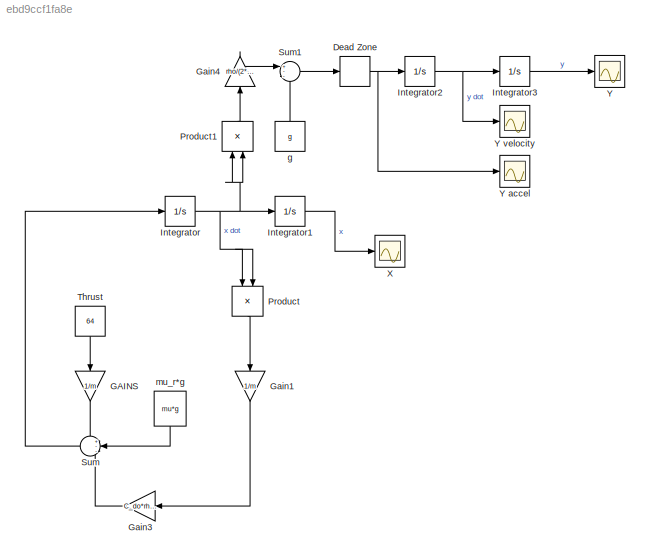
MODEL slx_ebd9ccf1fa8e
KIND model
CONFIG AbsTol = auto
CONFIG EnableMultiTasking = off
CONFIG FixedStep = auto
CONFIG MaxStep = auto
CONFIG MinStep = auto
CONFIG RelTol = 1e-3
CONFIG SampleTimeConstraint = Unconstrained
CONFIG SolverName = VariableStepAuto
CONFIG StartTime = 0.0
CONFIG StopTime = 5
BLOCK [DeadZone] Dead Zone
  LowerValue = -20
  UpperValue = 0
BLOCK [Gain] GAINS 
  Gain = 1/m
  NameLocation = left
BLOCK [Gain] Gain1
  Gain = 1/m
  NameLocation = left
BLOCK [Gain] Gain3
  Gain = C_do*rho/2*A_cxsec + mu*rho/2*S_cref*C_L
  NameLocation = top
BLOCK [Gain] Gain4
  Gain = rho/(2*m)*S_tref*C_L
  NameLocation = right
BLOCK [Integrator] Integrator
  Ports = [1, 1]
BLOCK [Integrator] Integrator1
  Ports = [1, 1]
BLOCK [Integrator] Integrator2
  Ports = [1, 1]
BLOCK [Integrator] Integrator3
  Ports = [1, 1]
BLOCK [Product] Product
  NameLocation = left
  Ports = [2, 1]
BLOCK [Product] Product1
  NameLocation = right
  Ports = [2, 1]
BLOCK [Sum] Sum
  Inputs = +--
  NameLocation = top
  Ports = [3, 1]
BLOCK [Sum] Sum1
  Inputs = +--
  Ports = [3, 1]
BLOCK [Constant] Thrust
  NameLocation = left
  Value = 64
BLOCK [Scope] X
  Floating = off
  NumInputPorts = 1
  Ports = [1]
  ScopeSpecificationString = Simulink.scopes.TimeScopeBlockCfg('CurrentConfiguration', extmgr.ConfigurationSet(extmgr.Configuration('Core','General UI',true),extmgr.Configuration('Core','Source UI',true),extmgr.Configuration('Sources','WiredSimulink',true),extmgr.Configuration('Visuals','Time Domain',true,'SerializedDisplays',{struct('MinYLimReal','-6.83551','MaxYLimReal','20.269','YLabelReal','','MinYLimMag','0.00000','MaxYL...<+1390ch>
BLOCK [Scope] Y
  Floating = off
  NumInputPorts = 1
  Ports = [1]
  ScopeSpecificationString = Simulink.scopes.TimeScopeBlockCfg('CurrentConfiguration', extmgr.ConfigurationSet(extmgr.Configuration('Core','General UI',true),extmgr.Configuration('Core','Source UI',true),extmgr.Configuration('Sources','WiredSimulink',true,'DataLoggingVariableName','ScopeData1'),extmgr.Configuration('Visuals','Time Domain',true,'SerializedDisplays',{struct('MinYLimReal','-0.01581','MaxYLimReal','0.03765','YLab...<+1434ch>
BLOCK [Scope] Y accel
  Floating = off
  NumInputPorts = 1
  Ports = [1]
  ScopeSpecificationString = Simulink.scopes.TimeScopeBlockCfg('CurrentConfiguration', extmgr.ConfigurationSet(extmgr.Configuration('Core','General UI',true),extmgr.Configuration('Core','Source UI',true),extmgr.Configuration('Sources','WiredSimulink',true,'DataLoggingVariableName','ScopeData3'),extmgr.Configuration('Visuals','Time Domain',true,'SerializedDisplays',{struct('MinYLimReal','-2.96125','MaxYLimReal','4.58849','YLab...<+1451ch>
BLOCK [Scope] Y velocity
  Floating = off
  NumInputPorts = 1
  Ports = [1]
  ScopeSpecificationString = Simulink.scopes.TimeScopeBlockCfg('CurrentConfiguration', extmgr.ConfigurationSet(extmgr.Configuration('Core','General UI',true),extmgr.Configuration('Core','Source UI',true),extmgr.Configuration('Sources','WiredSimulink',true,'DataLoggingVariableName','ScopeData2'),extmgr.Configuration('Visuals','Time Domain',true,'SerializedDisplays',{struct('MinYLimReal','-27.21','MaxYLimReal','31.52444','YLabe...<+1441ch>
BLOCK [Constant] g
  NameLocation = right
  Value = g
BLOCK [Constant] mu_r*g
  NameLocation = top
  Value = mu*g
NET Dead Zone:1 -> Integrator2:1, Y accel:1
LINE GAINS :1 -> Sum:1
LINE Gain1:1 -> Gain3:1
LINE Gain3:1 -> Sum:3
LINE Gain4:1 -> Sum1:1
LINE Integrator1:1 -> X:1
NET Integrator2:1 -> Integrator3:1, Y velocity:1
LINE Integrator3:1 -> Y:1
NET Integrator:1 -> Integrator1:1, Product1:1, Product1:2, Product:1, Product:2
LINE Product1:1 -> Gain4:1
LINE Product:1 -> Gain1:1
LINE Sum1:1 -> Dead Zone:1
LINE Sum:1 -> Integrator:1
LINE Thrust:1 -> GAINS :1
LINE g:1 -> Sum1:3
LINE mu_r*g:1 -> Sum:2
note: NET lines group one-source signal fan-out (src -> all destinations, sorted); 1:1 wires keep LINE
